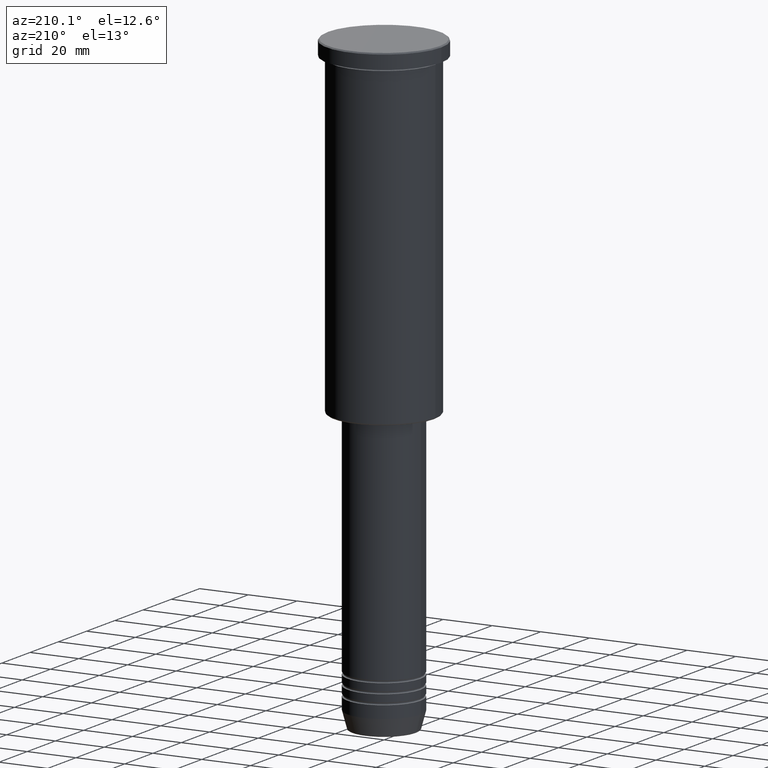
[diagram: clean part render]
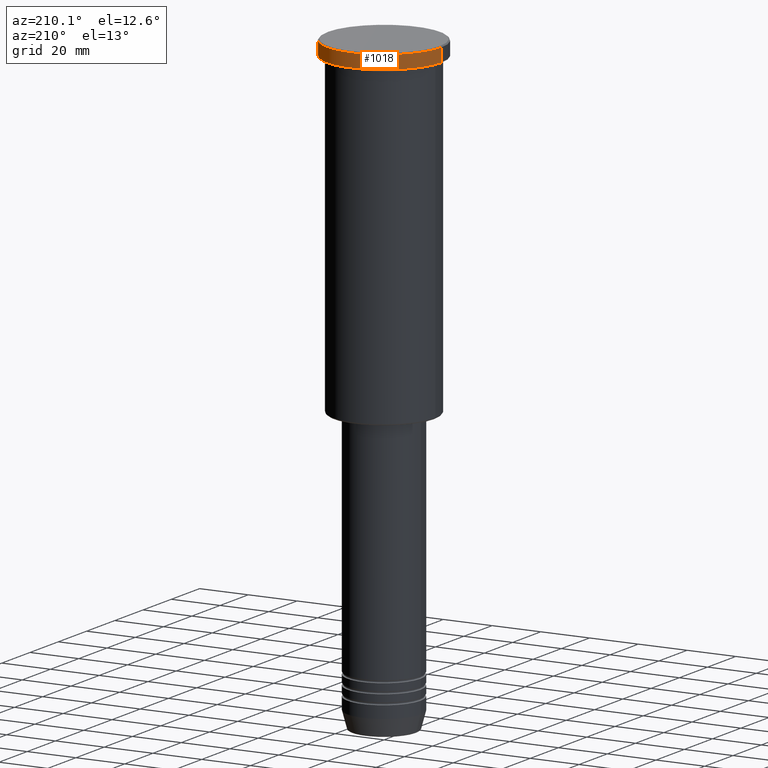
[diagram: same view with one face highlighted and labeled with its STEP entity id]
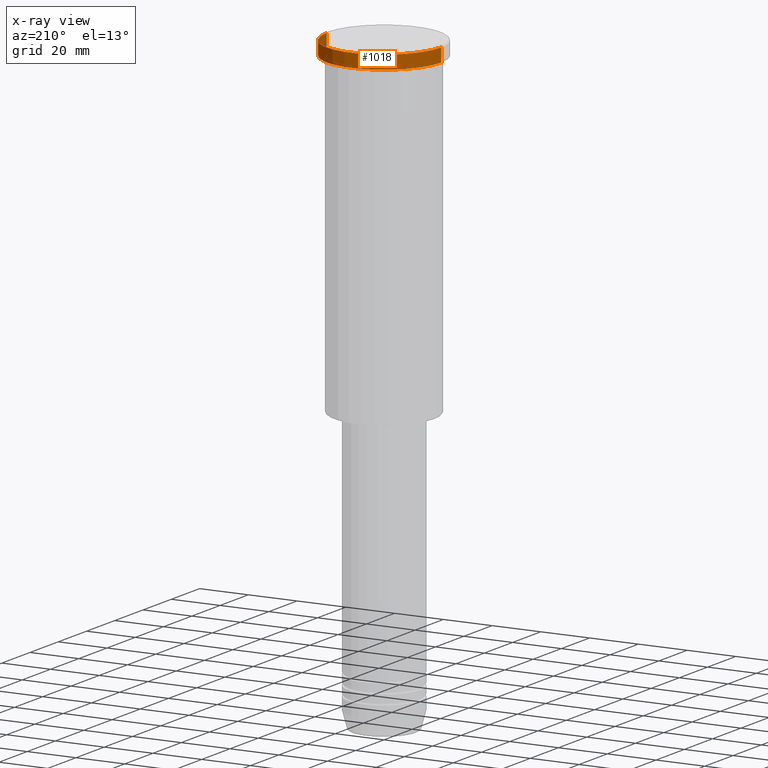
[diagram: x-ray of the same camera — body ghosted, the highlighted face saturated]
A machine part, auxiliary view. The second image highlights one B-rep face of the part: STEP entity #1018.
The next image is the same camera in x-ray: the body ghosted, the highlighted face saturated — about 0% of this face is hidden behind the body in this view.
In plain terms, the highlighted cylindrical surface (partial cylindrical patch) has radius 23.5 mm, axis along (-0, -0, 1).
Its self-contained STEP definition (entity closure, byte-faithful):
#7 = EDGE_CURVE ( 'NONE', #542, #898, #404, .T. ) ;
#34 = DIRECTION ( 'NONE',  ( -0.000000000000000000, -0.000000000000000000, 1.000000000000000000 ) ) ;
#41 = ORIENTED_EDGE ( 'NONE', *, *, #740, .T. ) ;
#56 = LINE ( 'NONE', #528, #572 ) ;
#82 = ORIENTED_EDGE ( 'NONE', *, *, #98, .F. ) ;
#98 = EDGE_CURVE ( 'NONE', #1090, #568, #56, .T. ) ;
#103 = DIRECTION ( 'NONE',  ( 0.000000000000000000, 0.000000000000000000, -1.000000000000000000 ) ) ;
#108 = CARTESIAN_POINT ( 'NONE',  ( 0.000000000000000000, 0.000000000000000000, -0.4999999999999726885 ) ) ;
#162 = CARTESIAN_POINT ( 'NONE',  ( 0.000000000000000000, 0.000000000000000000, 0.000000000000000000 ) ) ;
#218 = CARTESIAN_POINT ( 'NONE',  ( -23.50000000000000000, 2.877919977996280320E-15, -0.4999999999999726885 ) ) ;
#251 = CYLINDRICAL_SURFACE ( 'NONE', #1082, 23.50000000000000000 ) ;
#339 = CARTESIAN_POINT ( 'NONE',  ( 23.50000000000000000, 0.000000000000000000, -0.4999999999999726885 ) ) ;
#404 = LINE ( 'NONE', #946, #840 ) ;
#471 = DIRECTION ( 'NONE',  ( 1.000000000000000000, 0.000000000000000000, 0.000000000000000000 ) ) ;
#479 = CIRCLE ( 'NONE', #1103, 23.50000000000000000 ) ;
#528 = CARTESIAN_POINT ( 'NONE',  ( 23.50000000000000000, 0.000000000000000000, 0.000000000000000000 ) ) ;
#530 = DIRECTION ( 'NONE',  ( -0.000000000000000000, -0.000000000000000000, 1.000000000000000000 ) ) ;
#542 = VERTEX_POINT ( 'NONE', #697 ) ;
#550 = DIRECTION ( 'NONE',  ( 1.000000000000000000, 0.000000000000000000, 0.000000000000000000 ) ) ;
#568 = VERTEX_POINT ( 'NONE', #339 ) ;
#572 = VECTOR ( 'NONE', #1069, 1000.000000000000000 ) ;
#640 = ORIENTED_EDGE ( 'NONE', *, *, #7, .T. ) ;
#697 = CARTESIAN_POINT ( 'NONE',  ( -23.50000000000000000, 2.877919977996280320E-15, -5.999999999999993783 ) ) ;
#740 = EDGE_CURVE ( 'NONE', #898, #568, #479, .T. ) ;
#774 = ORIENTED_EDGE ( 'NONE', *, *, #1126, .T. ) ;
#801 = AXIS2_PLACEMENT_3D ( 'NONE', #1002, #1181, #550 ) ;
#807 = DIRECTION ( 'NONE',  ( 1.000000000000000000, 0.000000000000000000, 0.000000000000000000 ) ) ;
#840 = VECTOR ( 'NONE', #34, 1000.000000000000000 ) ;
#898 = VERTEX_POINT ( 'NONE', #218 ) ;
#926 = CARTESIAN_POINT ( 'NONE',  ( 23.50000000000000000, 0.000000000000000000, -5.999999999999993783 ) ) ;
#946 = CARTESIAN_POINT ( 'NONE',  ( -23.50000000000000000, 2.877919977996280320E-15, 0.000000000000000000 ) ) ;
#993 = CIRCLE ( 'NONE', #801, 23.50000000000000000 ) ;
#1002 = CARTESIAN_POINT ( 'NONE',  ( 0.000000000000000000, 0.000000000000000000, -5.999999999999993783 ) ) ;
#1018 = ADVANCED_FACE ( 'NONE', ( #1066 ), #251, .T. ) ;
#1039 = EDGE_LOOP ( 'NONE', ( #774, #640, #41, #82 ) ) ;
#1066 = FACE_OUTER_BOUND ( 'NONE', #1039, .T. ) ;
#1069 = DIRECTION ( 'NONE',  ( -0.000000000000000000, -0.000000000000000000, 1.000000000000000000 ) ) ;
#1082 = AXIS2_PLACEMENT_3D ( 'NONE', #162, #530, #807 ) ;
#1090 = VERTEX_POINT ( 'NONE', #926 ) ;
#1103 = AXIS2_PLACEMENT_3D ( 'NONE', #108, #103, #471 ) ;
#1126 = EDGE_CURVE ( 'NONE', #1090, #542, #993, .T. ) ;
#1181 = DIRECTION ( 'NONE',  ( -0.000000000000000000, -0.000000000000000000, 1.000000000000000000 ) ) ;